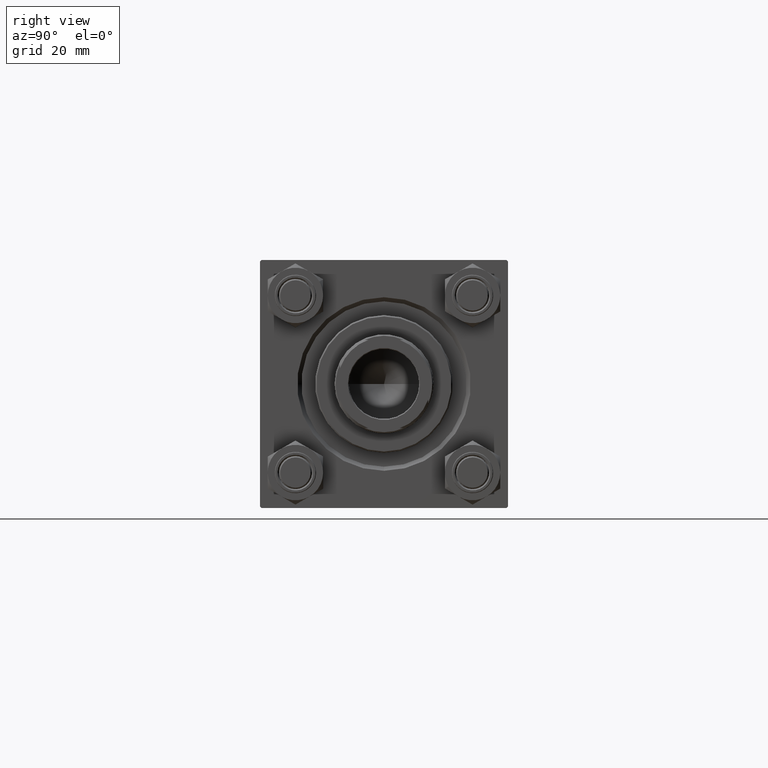
[diagram: clean part render]
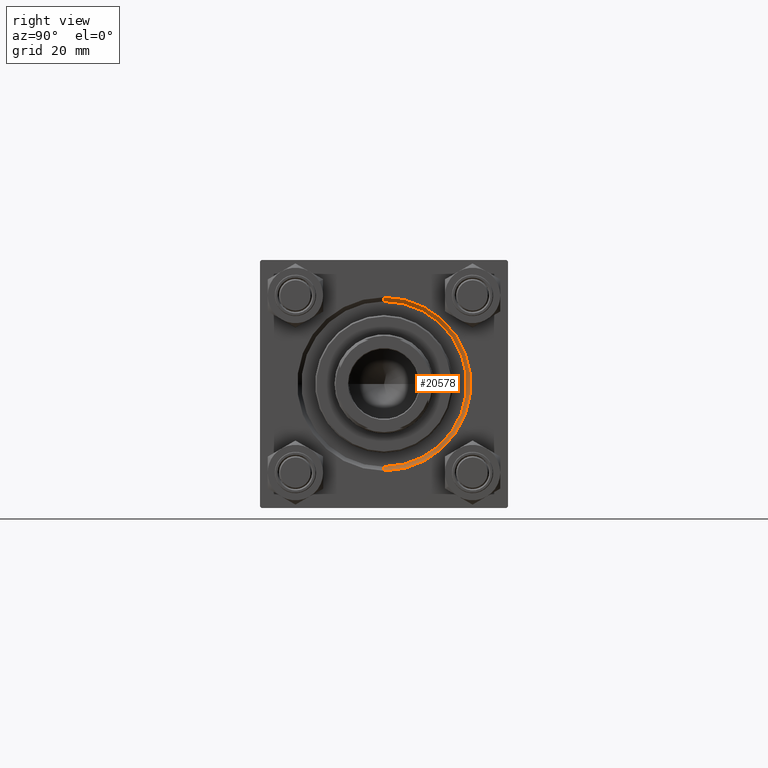
[diagram: same view with one face highlighted and labeled with its STEP entity id]
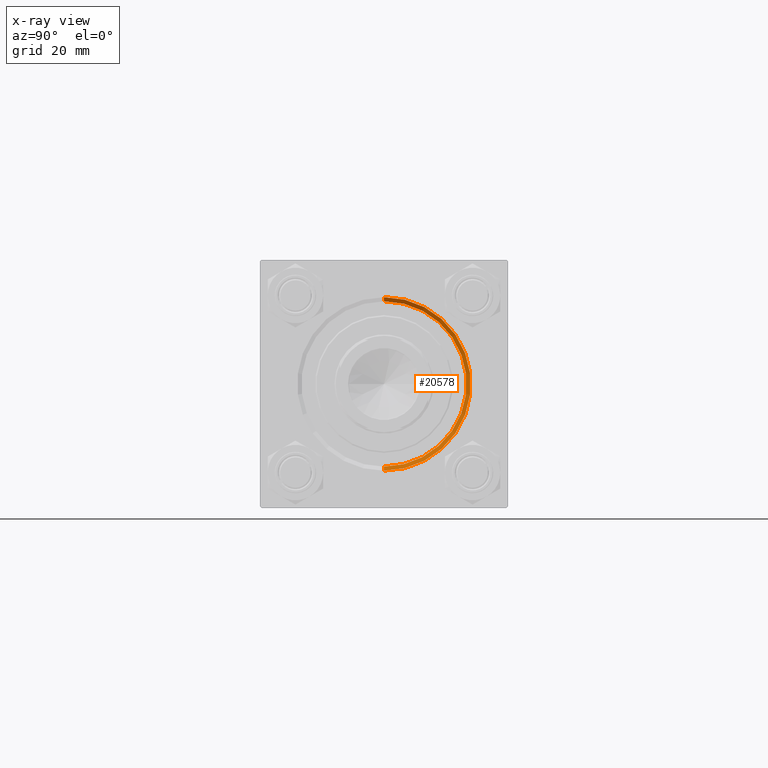
[diagram: x-ray of the same camera — body ghosted, the highlighted face saturated]
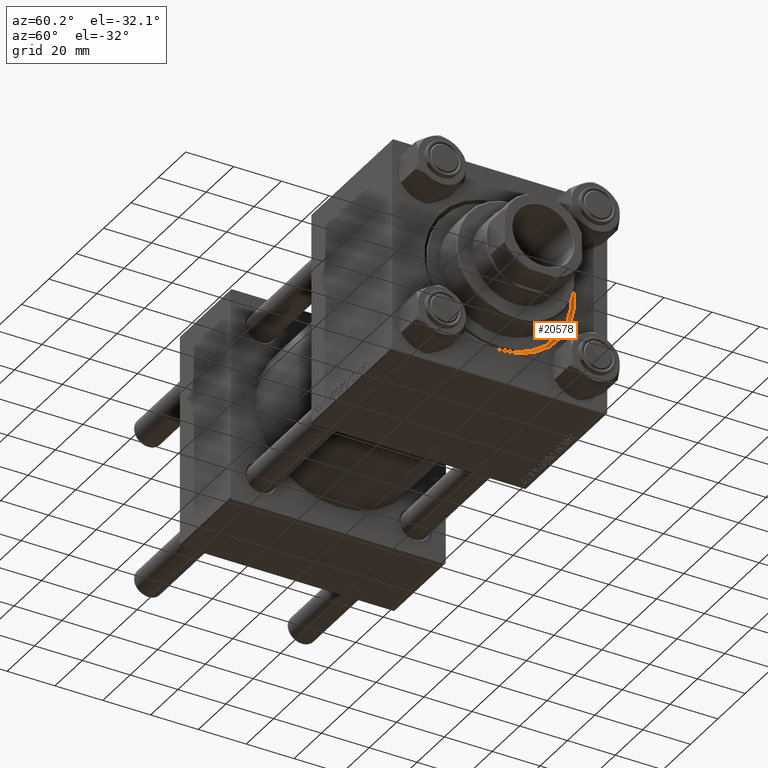
[diagram: same view with one face highlighted and labeled with its STEP entity id]
A machine part, right view. The second image highlights one B-rep face of the part: STEP entity #20578.
The next image is the same camera in x-ray: the body ghosted, the highlighted face saturated — about 0% of this face is hidden behind the body in this view.
A second angle (auxiliary view) of the same face is appended — the face is thin or edge-on in the first view.
In plain terms, the highlighted conical surface has half-angle 45 deg.
Its self-contained STEP definition (entity closure, byte-faithful):
#1301 = CARTESIAN_POINT ( 'NONE',  ( 155.0000000000000000, 0.000000000000000000, 0.000000000000000000 ) ) ;
#1756 = VECTOR ( 'NONE', #42406, 1000.000000000000114 ) ;
#3420 = CONICAL_SURFACE ( 'NONE', #25102, 30.00000000000000000, 0.7853981633974482790 ) ;
#3969 = DIRECTION ( 'NONE',  ( 0.7071067811865474617, 8.659560562354932858E-17, 0.7071067811865474617 ) ) ;
#5078 = CARTESIAN_POINT ( 'NONE',  ( 153.5000000000000000, 0.000000000000000000, 0.000000000000000000 ) ) ;
#6277 = AXIS2_PLACEMENT_3D ( 'NONE', #1301, #27967, #35534 ) ;
#6336 = ORIENTED_EDGE ( 'NONE', *, *, #9986, .F. ) ;
#8758 = DIRECTION ( 'NONE',  ( 1.000000000000000000, 0.000000000000000000, 0.000000000000000000 ) ) ;
#9986 = EDGE_CURVE ( 'NONE', #31466, #15424, #34404, .T. ) ;
#13023 = CARTESIAN_POINT ( 'NONE',  ( 153.5000000000000000, 0.000000000000000000, 0.000000000000000000 ) ) ;
#15424 = VERTEX_POINT ( 'NONE', #31593 ) ;
#19256 = CARTESIAN_POINT ( 'NONE',  ( 153.5000000000000000, 0.000000000000000000, -30.00000000000000000 ) ) ;
#19623 = VERTEX_POINT ( 'NONE', #30378 ) ;
#19945 = ORIENTED_EDGE ( 'NONE', *, *, #44091, .T. ) ;
#20578 = ADVANCED_FACE ( 'NONE', ( #23851 ), #3420, .F. ) ;
#23086 = LINE ( 'NONE', #34915, #34696 ) ;
#23851 = FACE_OUTER_BOUND ( 'NONE', #42118, .T. ) ;
#24117 = AXIS2_PLACEMENT_3D ( 'NONE', #5078, #27958, #46613 ) ;
#24351 = DIRECTION ( 'NONE',  ( 0.000000000000000000, 0.000000000000000000, -1.000000000000000000 ) ) ;
#25102 = AXIS2_PLACEMENT_3D ( 'NONE', #13023, #8758, #24351 ) ;
#26871 = CARTESIAN_POINT ( 'NONE',  ( 153.5000000000000000, 3.673940397442059178E-15, 30.00000000000000000 ) ) ;
#27958 = DIRECTION ( 'NONE',  ( 1.000000000000000000, 0.000000000000000000, 0.000000000000000000 ) ) ;
#27967 = DIRECTION ( 'NONE',  ( -1.000000000000000000, -0.000000000000000000, -0.000000000000000000 ) ) ;
#28129 = CIRCLE ( 'NONE', #24117, 30.00000000000000000 ) ;
#30378 = CARTESIAN_POINT ( 'NONE',  ( 153.5000000000000000, 0.000000000000000000, -30.00000000000000000 ) ) ;
#31466 = VERTEX_POINT ( 'NONE', #32484 ) ;
#31593 = CARTESIAN_POINT ( 'NONE',  ( 155.0000000000000000, 0.000000000000000000, -31.50000000000000000 ) ) ;
#32484 = CARTESIAN_POINT ( 'NONE',  ( 155.0000000000000000, 3.857637417314162689E-15, 31.50000000000000000 ) ) ;
#34404 = CIRCLE ( 'NONE', #6277, 31.50000000000000000 ) ;
#34696 = VECTOR ( 'NONE', #3969, 1000.000000000000114 ) ;
#34915 = CARTESIAN_POINT ( 'NONE',  ( 153.5000000000000000, 3.673940397442059178E-15, 30.00000000000000000 ) ) ;
#35534 = DIRECTION ( 'NONE',  ( 0.000000000000000000, 0.000000000000000000, 1.000000000000000000 ) ) ;
#36385 = EDGE_CURVE ( 'NONE', #19623, #39375, #28129, .T. ) ;
#37660 = ORIENTED_EDGE ( 'NONE', *, *, #36385, .F. ) ;
#39375 = VERTEX_POINT ( 'NONE', #26871 ) ;
#42118 = EDGE_LOOP ( 'NONE', ( #45422, #37660, #19945, #6336 ) ) ;
#42406 = DIRECTION ( 'NONE',  ( 0.7071067811865474617, 0.000000000000000000, -0.7071067811865474617 ) ) ;
#44091 = EDGE_CURVE ( 'NONE', #19623, #15424, #45683, .T. ) ;
#44557 = EDGE_CURVE ( 'NONE', #39375, #31466, #23086, .T. ) ;
#45422 = ORIENTED_EDGE ( 'NONE', *, *, #44557, .F. ) ;
#45683 = LINE ( 'NONE', #19256, #1756 ) ;
#46613 = DIRECTION ( 'NONE',  ( 0.000000000000000000, 0.000000000000000000, 1.000000000000000000 ) ) ;